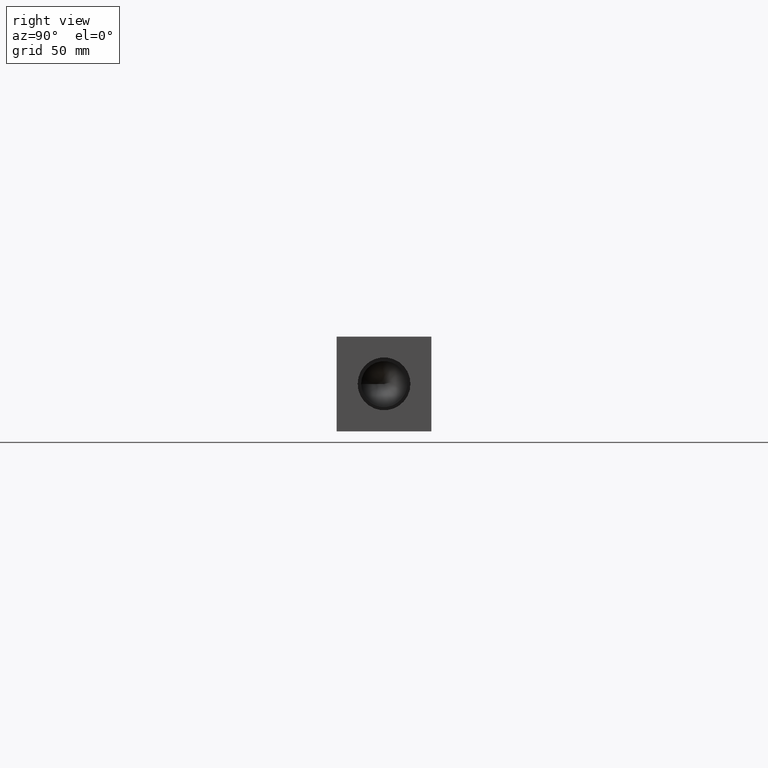
[diagram: clean part render]
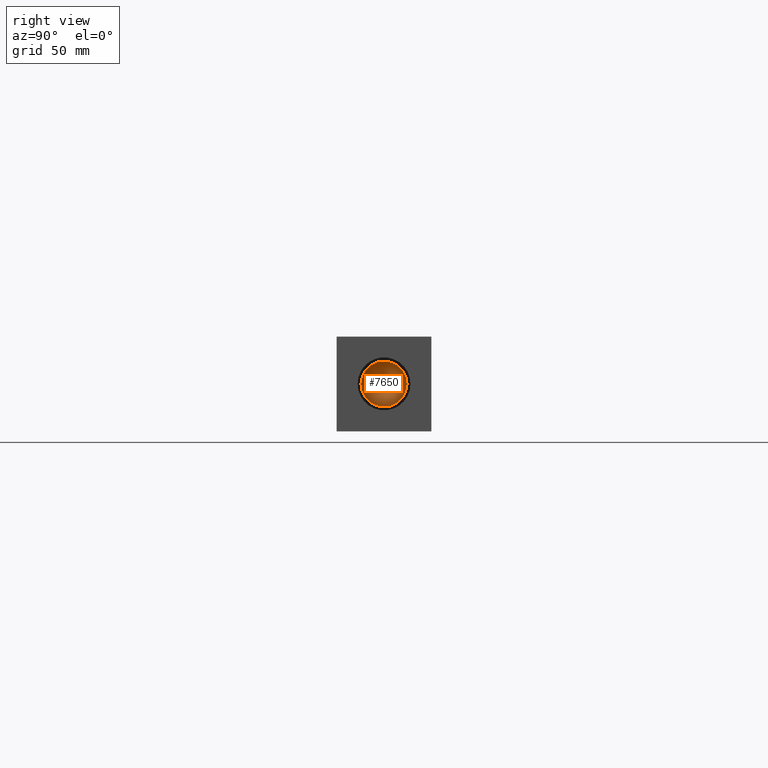
[diagram: same view with one face highlighted and labeled with its STEP entity id]
A machine part, right view. The second image highlights one B-rep face of the part: STEP entity #7650.
In plain terms, the highlighted conical surface has half-angle 60 deg.
Its self-contained STEP definition (entity closure, byte-faithful):
#26=CONICAL_SURFACE('',#8068,9.22655,1.0471975511966);
#182=CIRCLE('',#8069,18.4531);
#183=CIRCLE('',#8070,18.4531);
#876=FACE_OUTER_BOUND('',#1315,.T.);
#1315=EDGE_LOOP('',(#6783,#6784,#6785,#6786));
#2060=LINE('',#13048,#2786);
#2786=VECTOR('',#9594,9.22655);
#3694=VERTEX_POINT('',#13044);
#3695=VERTEX_POINT('',#13045);
#3696=VERTEX_POINT('',#13047);
#4738=EDGE_CURVE('',#3694,#3695,#182,.T.);
#4739=EDGE_CURVE('',#3695,#3696,#2060,.T.);
#4740=EDGE_CURVE('',#3695,#3694,#183,.T.);
#6783=ORIENTED_EDGE('',*,*,#4738,.T.);
#6784=ORIENTED_EDGE('',*,*,#4739,.T.);
#6785=ORIENTED_EDGE('',*,*,#4739,.F.);
#6786=ORIENTED_EDGE('',*,*,#4740,.T.);
#7650=ADVANCED_FACE('',(#876),#26,.F.);
#8068=AXIS2_PLACEMENT_3D('',#13043,#9590,#9591);
#8069=AXIS2_PLACEMENT_3D('',#13046,#9592,#9593);
#8070=AXIS2_PLACEMENT_3D('',#13049,#9595,#9596);
#9590=DIRECTION('center_axis',(1.,0.,0.));
#9591=DIRECTION('ref_axis',(0.,1.,0.));
#9592=DIRECTION('center_axis',(1.,0.,0.));
#9593=DIRECTION('ref_axis',(0.,1.,0.));
#9594=DIRECTION('',(-0.5,0.866025403784439,1.06057523872491E-16));
#9595=DIRECTION('center_axis',(1.,0.,0.));
#9596=DIRECTION('ref_axis',(0.,1.,0.));
#13043=CARTESIAN_POINT('Origin',(551.950458873809,38.1,38.1));
#13044=CARTESIAN_POINT('',(557.27741,56.5531,38.1));
#13045=CARTESIAN_POINT('',(557.27741,19.6469,38.1));
#13046=CARTESIAN_POINT('Origin',(557.27741,38.1,38.1));
#13047=CARTESIAN_POINT('',(546.623507747617,38.1,38.1));
#13048=CARTESIAN_POINT('',(551.950458873809,28.87345,38.1));
#13049=CARTESIAN_POINT('Origin',(557.27741,38.1,38.1));